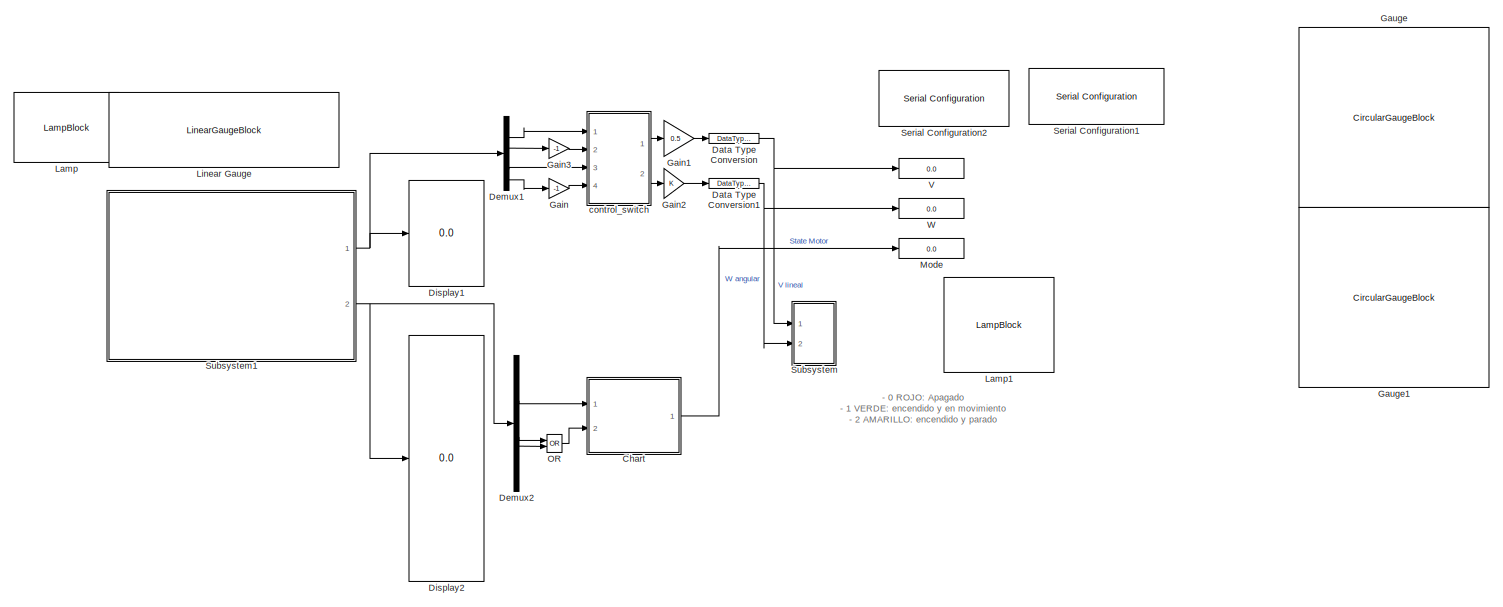
[diagram: root canvas - part 1/2, full width, top band]
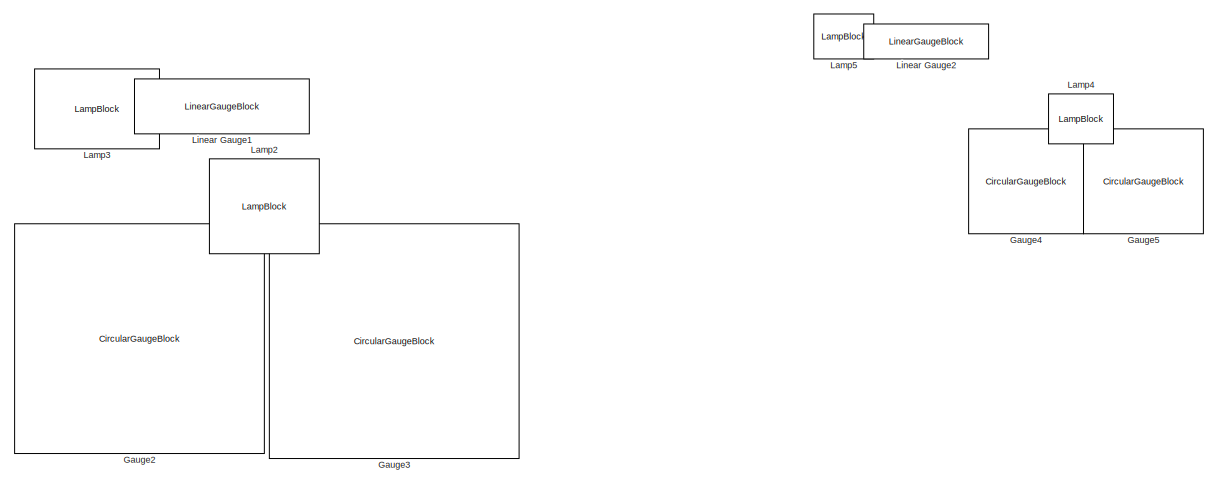
[diagram: root canvas - part 2/2, bottom right region]
MODEL slx_c0b75de1f08c
KIND model
CONFIG AbsTol = auto
CONFIG EnableMultiTasking = off
CONFIG FixedStep = 0.01
CONFIG InitFcn = Ts=0.01;
CONFIG MaxStep = 0.01
CONFIG MinStep = auto
CONFIG RelTol = 1e-3
CONFIG SampleTimeConstraint = Unconstrained
CONFIG SolverName = FixedStepDiscrete
CONFIG StartTime = 0.0
CONFIG StopTime = inf
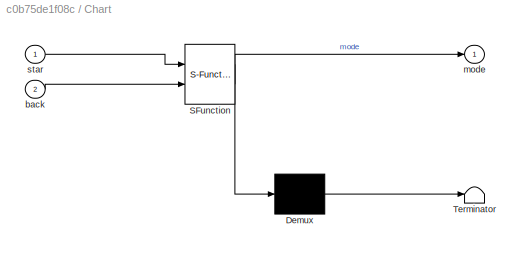
BLOCK [SubSystem] Chart
  ErrorFcn = Stateflow.Translate.translate
  PermitHierarchicalResolution = ExplicitOnly
  Ports = [2, 1]
  RequestExecContextInheritance = off
  SFBlockType = Chart
  TreatAsAtomicUnit = on
BLOCK [Demux] Chart/ Demux 
  Outputs = 1
  Ports = [1, 1]
BLOCK [S-Function] Chart/ SFunction 
  EnableBusSupport = off
  FunctionName = sf_sfun
  PortCounts = [2 2]
  Ports = [2, 2]
  SFcnIsStateOwnerBlock = off
  SFunctionDeploymentMode = off
  Tag = Stateflow S-Function 1
BLOCK [Terminator] Chart/ Terminator 
BLOCK [Inport] Chart/back
  Port = 2
BLOCK [Outport] Chart/mode
BLOCK [Inport] Chart/star
BLOCK [DataTypeConversion] Data Type Conversion
  OutDataTypeStr = single
  RndMeth = Floor
  SaturateOnIntegerOverflow = off
BLOCK [DataTypeConversion] Data Type Conversion1
  OutDataTypeStr = single
  RndMeth = Floor
  SaturateOnIntegerOverflow = off
BLOCK [Demux] Demux1
  Outputs = 6
  Ports = [1, 6]
BLOCK [Demux] Demux2
  Outputs = 14
  Ports = [1, 14]
BLOCK [Display] Display1
  Decimation = 1
  Ports = [1]
BLOCK [Display] Display2
  Decimation = 1
  Ports = [1]
BLOCK [Gain] Gain
  Gain = -1
BLOCK [Gain] Gain1
  Gain = 0.5
BLOCK [Gain] Gain2
BLOCK [Gain] Gain3
  Gain = -1
BLOCK [CircularGaugeBlock] Gauge
  ScaleMax = 2
BLOCK [CircularGaugeBlock] Gauge1
  ScaleMax = 1.2
BLOCK [CircularGaugeBlock] Gauge2
  ScaleMax = 2
BLOCK [CircularGaugeBlock] Gauge3
  ScaleMax = 1.2
BLOCK [CircularGaugeBlock] Gauge4
  ScaleMax = 2
BLOCK [CircularGaugeBlock] Gauge5
  ScaleMax = 1.2
BLOCK [LampBlock] Lamp
BLOCK [LampBlock] Lamp1
BLOCK [LampBlock] Lamp2
BLOCK [LampBlock] Lamp3
BLOCK [LampBlock] Lamp4
BLOCK [LampBlock] Lamp5
BLOCK [LinearGaugeBlock] Linear Gauge
  TickInterval = 25
BLOCK [LinearGaugeBlock] Linear Gauge1
  TickInterval = 25
BLOCK [LinearGaugeBlock] Linear Gauge2
  TickInterval = 25
BLOCK [Display] Mode
  Decimation = 1
  Ports = [1]
BLOCK [Logic] OR
  AllPortsSameDT = off
  IconShape = distinctive
  Operator = OR
  OutDataTypeStr = boolean
  Ports = [2, 1]
BLOCK [Reference] Serial Configuration1  REF=instrumentseriallib/Serial Configuration
  Commented = on
  Ports = []
  Priority = -200000
  SourceBlock = instrumentseriallib/Serial Configuration
  SourceProductBaseCode = IC
  SourceType = system.SerialConfiguration
BLOCK [Reference] Serial Configuration2  REF=instrumentseriallib/Serial Configuration
  Commented = on
  Ports = []
  Priority = -200000
  SourceBlock = instrumentseriallib/Serial Configuration
  SourceProductBaseCode = IC
  SourceType = system.SerialConfiguration
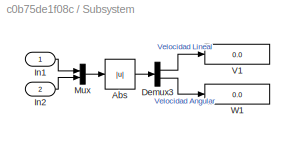
BLOCK [SubSystem] Subsystem
  Ports = [2]
  RequestExecContextInheritance = off
BLOCK [Abs] Subsystem/Abs
  SaturateOnIntegerOverflow = off
BLOCK [Demux] Subsystem/Demux3
  Outputs = 2
  Ports = [1, 2]
BLOCK [Inport] Subsystem/In1
BLOCK [Inport] Subsystem/In2
  Port = 2
BLOCK [Mux] Subsystem/Mux
  DisplayOption = bar
  Inputs = 2
  Ports = [2, 1]
BLOCK [Display] Subsystem/V1
  Decimation = 1
  Ports = [1]
BLOCK [Display] Subsystem/W1
  Decimation = 1
  Ports = [1]
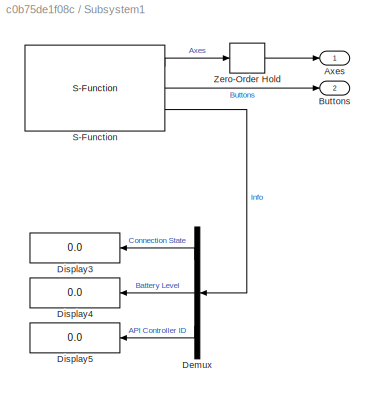
BLOCK [SubSystem] Subsystem1
  Ports = [0, 2]
  RequestExecContextInheritance = off
BLOCK [Outport] Subsystem1/Axes
BLOCK [Outport] Subsystem1/Buttons
  Port = 2
BLOCK [Demux] Subsystem1/Demux
  Outputs = 3
  Ports = [1, 3]
BLOCK [Display] Subsystem1/Display3
  Decimation = 1
  Ports = [1]
BLOCK [Display] Subsystem1/Display4
  Decimation = 1
  Ports = [1]
BLOCK [Display] Subsystem1/Display5
  Decimation = 1
  Ports = [1]
BLOCK [S-Function] Subsystem1/S-Function
  EnableBusSupport = off
  FunctionName = XInput_Controller_SFun
  Parameters = ControllerID
  Ports = [0, 3]
  SFcnIsStateOwnerBlock = off
  SFunctionDeploymentMode = off
  UserDataPersistent = on
BLOCK [ZeroOrderHold] Subsystem1/Zero-Order Hold
  SampleTime = -1
BLOCK [Display] V
  Decimation = 1
  Ports = [1]
BLOCK [Display] W
  Decimation = 1
  Ports = [1]
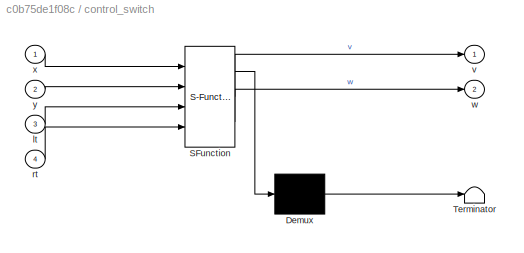
BLOCK [SubSystem] control_switch
  ErrorFcn = Stateflow.Translate.translate
  PermitHierarchicalResolution = ExplicitOnly
  Ports = [4, 2]
  RequestExecContextInheritance = off
  SFBlockType = MATLAB Function
  TreatAsAtomicUnit = on
BLOCK [Demux] control_switch/ Demux 
  Outputs = 1
  Ports = [1, 1]
BLOCK [S-Function] control_switch/ SFunction 
  EnableBusSupport = off
  FunctionName = sf_sfun
  PortCounts = [4 3]
  Ports = [4, 3]
  SFcnIsStateOwnerBlock = off
  SFunctionDeploymentMode = off
  Tag = Stateflow S-Function 2
BLOCK [Terminator] control_switch/ Terminator 
BLOCK [Inport] control_switch/lt
  Port = 3
BLOCK [Inport] control_switch/rt
  Port = 4
BLOCK [Outport] control_switch/v
BLOCK [Outport] control_switch/w
  Port = 2
BLOCK [Inport] control_switch/x
BLOCK [Inport] control_switch/y
  Port = 2
ANNOTATION (root): - 0 ROJO : Apagado - 1 VERDE : encendido y en movimiento - 2 AMARILLO : encendido y parado
LINE Chart:1 -> Mode:1
NET Data Type Conversion1:1 -> Subsystem:2, W:1
NET Data Type Conversion:1 -> Subsystem:1, V:1
LINE Demux1:2 -> control_switch:1
LINE Demux1:3 -> Gain3:1
LINE Demux1:5 -> control_switch:3
LINE Demux1:6 -> Gain:1
LINE Demux2:10 -> OR:2
LINE Demux2:5 -> Chart:1
LINE Demux2:9 -> OR:1
LINE Gain1:1 -> Data Type Conversion:1
LINE Gain2:1 -> Data Type Conversion1:1
LINE Gain3:1 -> control_switch:2
LINE Gain:1 -> control_switch:4
LINE OR:1 -> Chart:2
LINE Subsystem/Abs:1 -> Subsystem/Demux3:1
LINE Subsystem/Demux3:1 -> Subsystem/V1:1
LINE Subsystem/Demux3:2 -> Subsystem/W1:1
LINE Subsystem/In1:1 -> Subsystem/Mux:1
LINE Subsystem/In2:1 -> Subsystem/Mux:2
LINE Subsystem/Mux:1 -> Subsystem/Abs:1
LINE Subsystem1/Demux:1 -> Subsystem1/Display3:1
LINE Subsystem1/Demux:2 -> Subsystem1/Display4:1
LINE Subsystem1/Demux:3 -> Subsystem1/Display5:1
LINE Subsystem1/S-Function:1 -> Subsystem1/Zero-Order Hold:1
LINE Subsystem1/S-Function:2 -> Subsystem1/Buttons:1
LINE Subsystem1/S-Function:3 -> Subsystem1/Demux:1
LINE Subsystem1/Zero-Order Hold:1 -> Subsystem1/Axes:1
NET Subsystem1:1 -> Demux1:1, Display1:1
NET Subsystem1:2 -> Demux2:1, Display2:1
LINE control_switch:1 -> Gain1:1
LINE control_switch:2 -> Gain2:1
note: NET lines group one-source signal fan-out (src -> all destinations, sorted); 1:1 wires keep LINE
CHART Chart states=2 transitions=3
  STATE_LABEL 'ON\nentry: mode=1;'
  STATE_LABEL 'OFF\nentry: mode=0;'
CHART control_switch states=1 transitions=1
  STATE_LABEL 'eML_blk_kernel()'
  STATE_LABEL 'SCRIPT:\nfunction [v,w]=fcn(x,y,lt,rt)\n\n    if (rt==0) && (lt==0) && ((x>=0.3) || (x<=-0.3))\n        v=x;\n        w=y;\n    elseif (x~=0) && ((rt~=0) || (lt~=0))\n        w=0;\n        v=0;\n    elseif (x==0) && (y==0) && (rt==0) && (lt~=0)\n        w=lt;\n        v=0;\n    elseif (x==0) && (y==0) && (lt==0) && (rt~=0)\n        w=rt;\n        v=0;\n    elseif (lt~=0) && (rt~=0)\n        w=0;\n        v=0;\n    ...<+107ch>'
CHART  states=0 transitions=0
CHART  states=0 transitions=0
